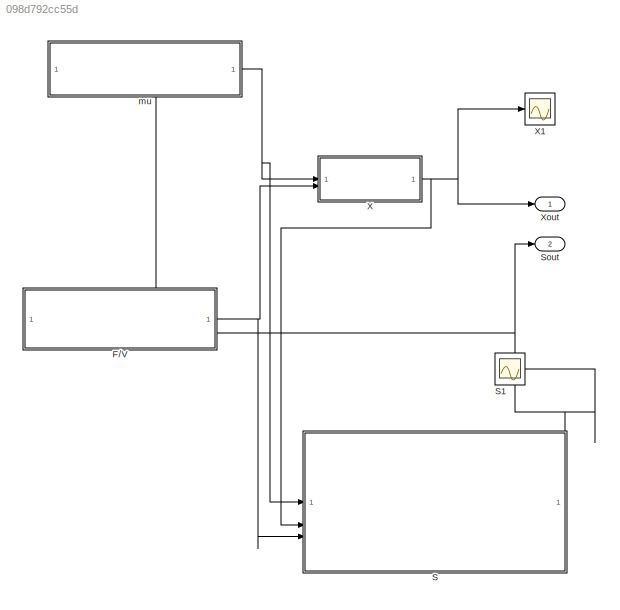
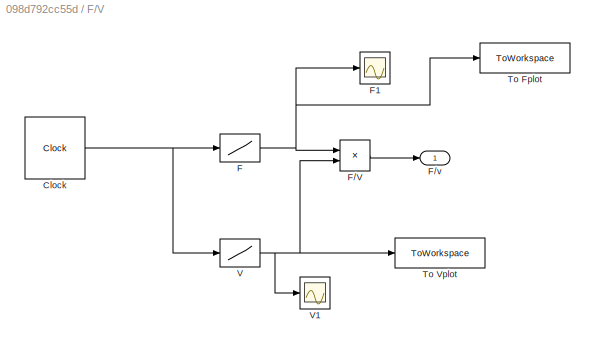
MODEL slx_098d792cc55d
KIND model
CONFIG AbsTol = 1e-3
CONFIG EnableMultiTasking = off
CONFIG FixedStep = auto
CONFIG MaxStep = 0.001
CONFIG MinStep = auto
CONFIG RelTol = 1e-3
CONFIG SampleTimeConstraint = Unconstrained
CONFIG SolverName = VariableStepAuto
CONFIG StartTime = 6.69
CONFIG StopTime = 11.57
BLOCK [SubSystem] F//V
BLOCK [Clock] F//V/Clock
BLOCK [Lookup] F//V/F
  InputValues = tt
  Table = Fa
BLOCK [Product] F//V/F//V
  Inputs = */
BLOCK [Outport] F//V/F//v
BLOCK [Scope] F//V/F1
  Floating = off
  NumInputPorts = 1
  ScopeSpecificationString = Simulink.scopes.TimeScopeBlockCfg('CurrentConfiguration', extmgr.ConfigurationSet(extmgr.Configuration('Core','General UI',true),extmgr.Configuration('Core','Source UI',true),extmgr.Configuration('Sources','WiredSimulink',true),extmgr.Configuration('Visuals','Time Domain',true,'SerializedDisplays',{struct('MinYLimReal','-0.02303','MaxYLimReal','0.20731','YLabelReal','','MinYLimMag','0.00000','MaxY...<+1463ch>
BLOCK [ToWorkspace] F//V/To Fplot
  FixptAsFi = on
  MaxDataPoints = inf
  SampleTime = -1
  SaveFormat = Timeseries
  VariableName = F
BLOCK [ToWorkspace] F//V/To Vplot
  FixptAsFi = on
  MaxDataPoints = inf
  SampleTime = -1
  SaveFormat = Timeseries
  VariableName = V
BLOCK [Lookup] F//V/V
  InputValues = tt
  Table = Va
BLOCK [Scope] F//V/V1
  Floating = off
  NumInputPorts = 1
  ScopeSpecificationString = Simulink.scopes.TimeScopeBlockCfg('CurrentConfiguration', extmgr.ConfigurationSet(extmgr.Configuration('Core','General UI',true),extmgr.Configuration('Core','Source UI',true),extmgr.Configuration('Sources','WiredSimulink',true,'DataLoggingVariableName','ScopeData1'),extmgr.Configuration('Visuals','Time Domain',true,'SerializedDisplays',{struct('MinYLimReal','1.3231','MaxYLimReal','1.59209','YLabel...<+1495ch>
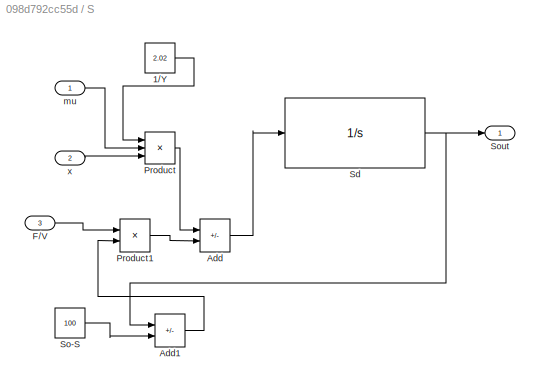
BLOCK [SubSystem] S
  PortSchema = {"entries":[{"content":{"sides":[{"content":{"connectorIds":["In1","In2","In3"]},"type":"ConnectorPlacement.EquallySpacedRectSide","uuid":"9a74bdac-b548-4137-a032-9cac2d72be40"},{"content":{"side":"RIGHT"},"type":"ConnectorPlacement.EquallySpacedRectSide","uuid":"d4c5fdef-27ac-445a-8b9e-624041f2cb6b"},{"content":{"connectorIds":["Out1"],"side":"TOP"},"type":"ConnectorPlacement.EquallySpacedRectSid...<+234ch>
BLOCK [Constant] S/1//Y
  Value = 2.02
BLOCK [Sum] S/Add
  IconShape = rectangular
  Inputs = -+
BLOCK [Sum] S/Add1
  IconShape = rectangular
  Inputs = -+
BLOCK [Inport] S/F//V
  Port = 3
BLOCK [Product] S/Product
  Inputs = 3
BLOCK [Product] S/Product1
BLOCK [Integrator] S/Sd
  InitialCondition = Sd(1)
BLOCK [Constant] S/So-S
  Value = 100
BLOCK [Outport] S/Sout
BLOCK [Inport] S/mu
BLOCK [Inport] S/x
  Port = 2
BLOCK [Scope] S1
  Floating = off
  NumInputPorts = 1
  ScopeSpecificationString = Simulink.scopes.TimeScopeBlockCfg('CurrentConfiguration', extmgr.ConfigurationSet(extmgr.Configuration('Core','General UI',true),extmgr.Configuration('Core','Source UI',true),extmgr.Configuration('Sources','WiredSimulink',true,'DataLoggingVariableName','ScopeData3'),extmgr.Configuration('Visuals','Time Domain',true,'SerializedDisplays',{struct('MinYLimReal','-0.08649','MaxYLimReal','0.91184','YLab...<+1503ch>
BLOCK [Outport] Sout
  Port = 2
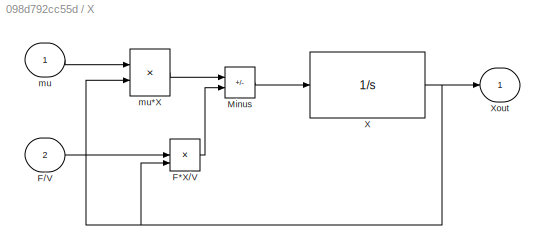
BLOCK [SubSystem] X
BLOCK [Product] X/F*X//V
  Inputs = 3
BLOCK [Inport] X/F//V
  Port = 2
BLOCK [Sum] X/Minus
  IconShape = rectangular
  Inputs = +-
BLOCK [Integrator] X/X
  InitialCondition = Xd(1)
BLOCK [Outport] X/Xout
BLOCK [Inport] X/mu
BLOCK [Product] X/mu*X
BLOCK [Scope] X1
  Floating = off
  NumInputPorts = 1
  ScopeSpecificationString = Simulink.scopes.TimeScopeBlockCfg('CurrentConfiguration', extmgr.ConfigurationSet(extmgr.Configuration('Core','General UI',true),extmgr.Configuration('Core','Source UI',true),extmgr.Configuration('Sources','WiredSimulink',true,'DataLoggingVariableName','ScopeData2'),extmgr.Configuration('Visuals','Time Domain',true,'SerializedDisplays',{struct('MinYLimReal','0.28931','MaxYLimReal','9.91615','YLabe...<+1502ch>
BLOCK [Outport] Xout
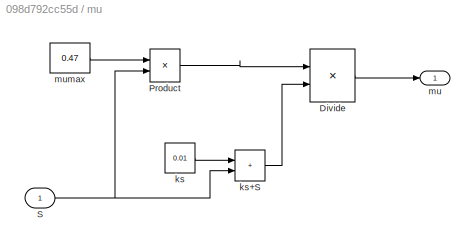
BLOCK [SubSystem] mu
BLOCK [Product] mu/Divide
  Inputs = */
BLOCK [Product] mu/Product
BLOCK [Inport] mu/S
BLOCK [Constant] mu/ks
  Value = 0.01
BLOCK [Sum] mu/ks+S
  IconShape = rectangular
BLOCK [Outport] mu/mu
BLOCK [Constant] mu/mumax
  Value = 0.47
NET F//V/Clock:1 -> F//V/F:1, F//V/V:1
LINE F//V/F//V:1 -> F//V/F//v:1
NET F//V/F:1 -> F//V/F//V:1, F//V/F1:1, F//V/To Fplot:1
NET F//V/V:1 -> F//V/F//V:2, F//V/To Vplot:1, F//V/V1:1
NET F//V:1 -> S:3, X:2
LINE S/1//Y:1 -> S/Product:1
LINE S/Add1:1 -> S/Product1:2
LINE S/Add:1 -> S/Sd:1
LINE S/F//V:1 -> S/Product1:1
LINE S/Product1:1 -> S/Add:2
LINE S/Product:1 -> S/Add:1
NET S/Sd:1 -> S/Add1:1, S/Sout:1
LINE S/So-S:1 -> S/Add1:2
LINE S/mu:1 -> S/Product:2
LINE S/x:1 -> S/Product:3
NET S:1 -> S1:1, Sout:1, mu:1
LINE X/F*X//V:1 -> X/Minus:2
LINE X/F//V:1 -> X/F*X//V:2
LINE X/Minus:1 -> X/X:1
NET X/X:1 -> X/F*X//V:3, X/Xout:1, X/mu*X:2
LINE X/mu*X:1 -> X/Minus:1
LINE X/mu:1 -> X/mu*X:1
NET X:1 -> S:2, X1:1, Xout:1
LINE mu/Divide:1 -> mu/mu:1
LINE mu/Product:1 -> mu/Divide:1
NET mu/S:1 -> mu/Product:2, mu/ks+S:2
LINE mu/ks+S:1 -> mu/Divide:2
LINE mu/ks:1 -> mu/ks+S:1
LINE mu/mumax:1 -> mu/Product:1
NET mu:1 -> S:1, X:1
note: NET lines group one-source signal fan-out (src -> all destinations, sorted); 1:1 wires keep LINE
